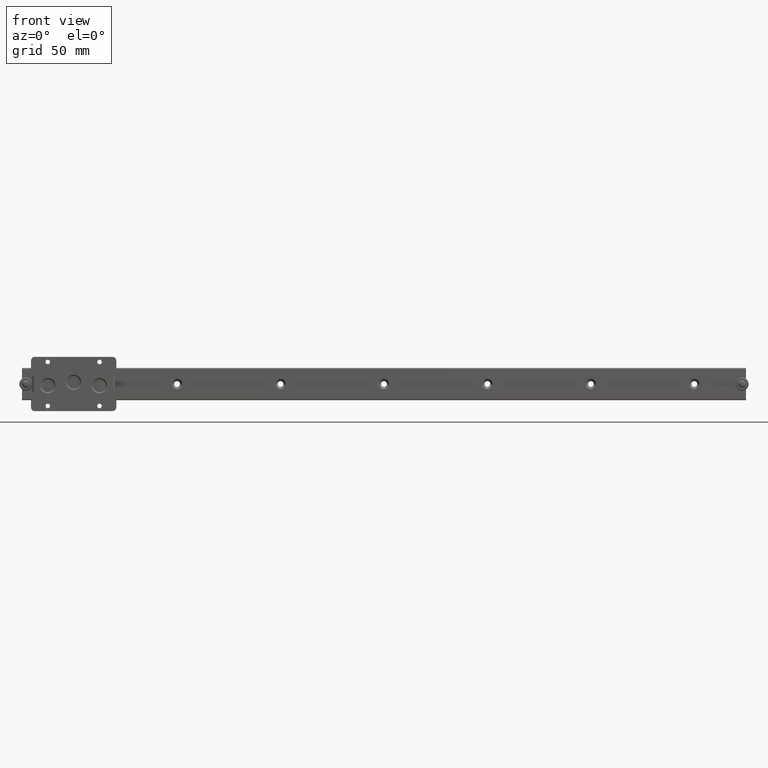
[diagram: clean part render]
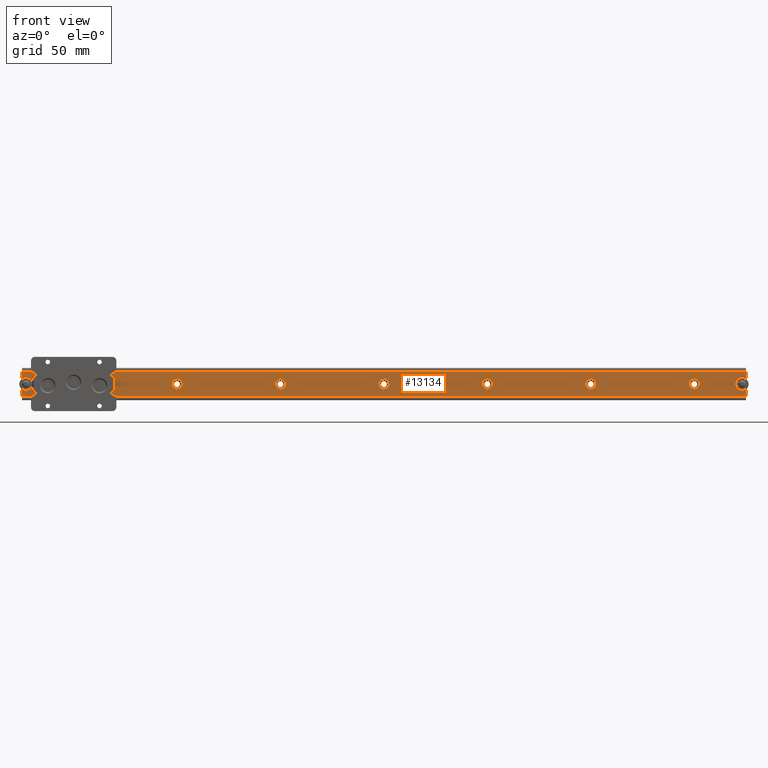
[diagram: same view with one face highlighted and labeled with its STEP entity id]
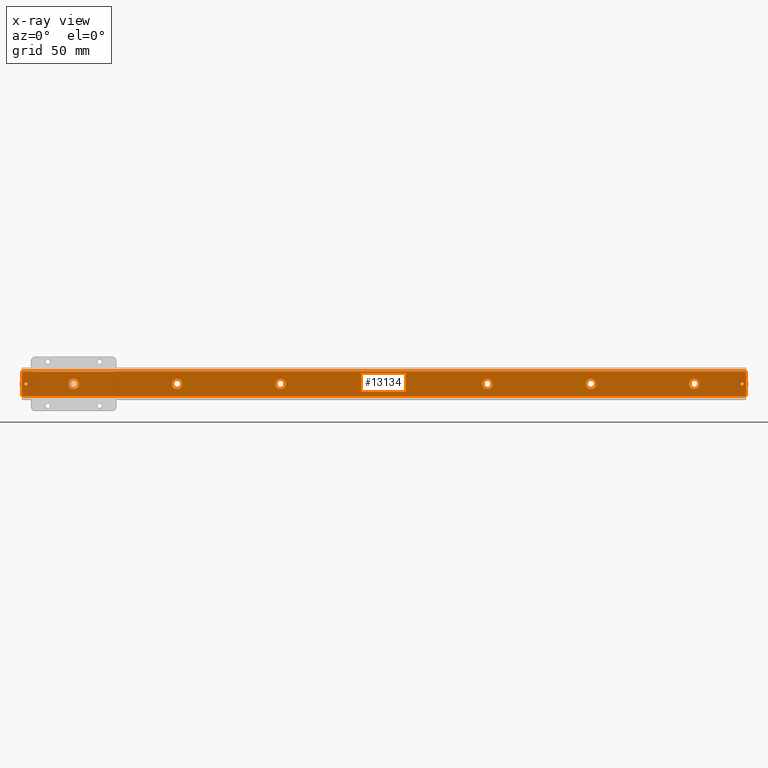
[diagram: x-ray of the same camera — body ghosted, the highlighted face saturated]
A machine part, front view. The second image highlights one B-rep face of the part: STEP entity #13134.
The next image is the same camera in x-ray: the body ghosted, the highlighted face saturated — about 0% of this face is hidden behind the body in this view.
In plain terms, the highlighted face is a freeform B-spline surface patch.
Its self-contained STEP definition (entity closure, byte-faithful):
#10102=CARTESIAN_POINT('',(523.992539195827020,-1.900000004012928,-0.244194188891373));
#10103=VERTEX_POINT('',#10102);
#10109=CARTESIAN_POINT('',(520.0,-1.899999999999950,4.0));
#10110=VERTEX_POINT('',#10109);
#10111=CARTESIAN_POINT('',(523.992539195827020,-1.900000004012928,-0.244194188891373));
#10112=CARTESIAN_POINT('',(524.000000003947890,-1.900000003955260,-0.122211068732068));
#10113=CARTESIAN_POINT('',(524.000000003886730,-1.900000003893956,-2.377184E-010));
#10114=CARTESIAN_POINT('',(524.000000001884020,-1.900000001887467,3.999999999884772));
#10115=CARTESIAN_POINT('',(520.0,-1.899999999999950,4.0));
#10123=(BOUNDED_CURVE()B_SPLINE_CURVE(2,(#10111,#10112,#10113,#10114,#10115),.UNSPECIFIED.,.F.,.U.)B_SPLINE_CURVE_WITH_KNOTS((3,2,3),(0.239332960923540,0.250000000000000,0.500000000000000),.UNSPECIFIED.)CURVE()GEOMETRIC_REPRESENTATION_ITEM()RATIONAL_B_SPLINE_CURVE((0.976072038847558,0.987502786358746,1.0,0.707106781186548,1.0))REPRESENTATION_ITEM(''));
#10124=EDGE_CURVE('',#10103,#10110,#10123,.T.);
#10126=CARTESIAN_POINT('',(516.007460804172980,-1.900000004012928,0.244194188891373));
#10127=VERTEX_POINT('',#10126);
#10128=CARTESIAN_POINT('',(520.0,-1.899999999999950,4.0));
#10129=CARTESIAN_POINT('',(516.237175759179990,-1.900000002006439,4.000000000122491));
#10130=CARTESIAN_POINT('',(516.007460804172980,-1.900000004012928,0.244194188891373));
#10138=(BOUNDED_CURVE()B_SPLINE_CURVE(2,(#10128,#10129,#10130),.UNSPECIFIED.,.F.,.U.)B_SPLINE_CURVE_WITH_KNOTS((3,3),(0.500000000000000,0.739332960923540),.UNSPECIFIED.)CURVE()GEOMETRIC_REPRESENTATION_ITEM()RATIONAL_B_SPLINE_CURVE((1.0,0.719603994827801,0.976072038847558))REPRESENTATION_ITEM(''));
#10139=EDGE_CURVE('',#10110,#10127,#10138,.T.);
#10171=CARTESIAN_POINT('',(520.0,-1.899999999999950,-4.0));
#10172=VERTEX_POINT('',#10171);
#10173=CARTESIAN_POINT('',(516.007460804172980,-1.900000004012928,0.244194188891373));
#10174=CARTESIAN_POINT('',(515.999999996052220,-1.900000003955260,0.122211068732068));
#10175=CARTESIAN_POINT('',(515.999999996113390,-1.900000003893956,2.377190E-010));
#10176=CARTESIAN_POINT('',(515.999999998116100,-1.900000001887467,-3.999999999884772));
#10177=CARTESIAN_POINT('',(520.0,-1.899999999999950,-4.0));
#10185=(BOUNDED_CURVE()B_SPLINE_CURVE(2,(#10173,#10174,#10175,#10176,#10177),.UNSPECIFIED.,.F.,.U.)B_SPLINE_CURVE_WITH_KNOTS((3,2,3),(0.739332960923540,0.750000000000000,1.0),.UNSPECIFIED.)CURVE()GEOMETRIC_REPRESENTATION_ITEM()RATIONAL_B_SPLINE_CURVE((0.976072038847558,0.987502786358746,1.0,0.707106781186548,1.0))REPRESENTATION_ITEM(''));
#10186=EDGE_CURVE('',#10127,#10172,#10185,.T.);
#10188=CARTESIAN_POINT('',(520.0,-1.899999999999950,-4.0));
#10189=CARTESIAN_POINT('',(523.762824240820010,-1.900000002006439,-4.000000000122495));
#10190=CARTESIAN_POINT('',(523.992539195827020,-1.900000004012928,-0.244194188891373));
#10198=(BOUNDED_CURVE()B_SPLINE_CURVE(2,(#10188,#10189,#10190),.UNSPECIFIED.,.F.,.U.)B_SPLINE_CURVE_WITH_KNOTS((3,3),(0.0,0.239332960923540),.UNSPECIFIED.)CURVE()GEOMETRIC_REPRESENTATION_ITEM()RATIONAL_B_SPLINE_CURVE((1.0,0.719603994827801,0.976072038847559))REPRESENTATION_ITEM(''));
#10199=EDGE_CURVE('',#10172,#10103,#10198,.T.);
#10406=CARTESIAN_POINT('',(443.992539195827080,-1.900000004012930,-0.244194188891373));
#10407=VERTEX_POINT('',#10406);
#10413=CARTESIAN_POINT('',(440.0,-1.899999999999950,4.0));
#10414=VERTEX_POINT('',#10413);
#10415=CARTESIAN_POINT('',(443.992539195827130,-1.900000004012930,-0.244194188891373));
#10416=CARTESIAN_POINT('',(444.000000003948000,-1.900000003955261,-0.122211068732073));
#10417=CARTESIAN_POINT('',(444.000000003886900,-1.900000003893958,-2.377291E-010));
#10418=CARTESIAN_POINT('',(444.000000001884020,-1.900000001887468,3.999999999884766));
#10419=CARTESIAN_POINT('',(440.0,-1.899999999999950,4.0));
#10427=(BOUNDED_CURVE()B_SPLINE_CURVE(2,(#10415,#10416,#10417,#10418,#10419),.UNSPECIFIED.,.F.,.U.)B_SPLINE_CURVE_WITH_KNOTS((3,2,3),(0.239332960923540,0.250000000000000,0.500000000000000),.UNSPECIFIED.)CURVE()GEOMETRIC_REPRESENTATION_ITEM()RATIONAL_B_SPLINE_CURVE((0.976072038847559,0.987502786358747,1.0,0.707106781186548,1.0))REPRESENTATION_ITEM(''));
#10428=EDGE_CURVE('',#10407,#10414,#10427,.T.);
#10430=CARTESIAN_POINT('',(436.007460804172920,-1.900000004012914,0.244194188891370));
#10431=VERTEX_POINT('',#10430);
#10432=CARTESIAN_POINT('',(440.0,-1.899999999999950,4.0));
#10433=CARTESIAN_POINT('',(436.237175759179930,-1.900000002006433,4.000000000122497));
#10434=CARTESIAN_POINT('',(436.007460804172920,-1.900000004012914,0.244194188891370));
#10442=(BOUNDED_CURVE()B_SPLINE_CURVE(2,(#10432,#10433,#10434),.UNSPECIFIED.,.F.,.U.)B_SPLINE_CURVE_WITH_KNOTS((3,3),(0.500000000000000,0.739332960923540),.UNSPECIFIED.)CURVE()GEOMETRIC_REPRESENTATION_ITEM()RATIONAL_B_SPLINE_CURVE((1.0,0.719603994827800,0.976072038847559))REPRESENTATION_ITEM(''));
#10443=EDGE_CURVE('',#10414,#10431,#10442,.T.);
#10475=CARTESIAN_POINT('',(440.0,-1.899999999999950,-4.0));
#10476=VERTEX_POINT('',#10475);
#10477=CARTESIAN_POINT('',(436.007460804172920,-1.900000004012914,0.244194188891370));
#10478=CARTESIAN_POINT('',(435.999999996052110,-1.900000003955245,0.122211068732071));
#10479=CARTESIAN_POINT('',(435.999999996113270,-1.900000003893942,2.377281E-010));
#10480=CARTESIAN_POINT('',(435.999999998116040,-1.900000001887460,-3.999999999884768));
#10481=CARTESIAN_POINT('',(440.0,-1.899999999999950,-4.0));
#10489=(BOUNDED_CURVE()B_SPLINE_CURVE(2,(#10477,#10478,#10479,#10480,#10481),.UNSPECIFIED.,.F.,.U.)B_SPLINE_CURVE_WITH_KNOTS((3,2,3),(0.739332960923540,0.750000000000000,1.0),.UNSPECIFIED.)CURVE()GEOMETRIC_REPRESENTATION_ITEM()RATIONAL_B_SPLINE_CURVE((0.976072038847559,0.987502786358747,1.0,0.707106781186548,1.0))REPRESENTATION_ITEM(''));
#10490=EDGE_CURVE('',#10431,#10476,#10489,.T.);
#10492=CARTESIAN_POINT('',(440.0,-1.899999999999950,-4.0));
#10493=CARTESIAN_POINT('',(443.762824240820070,-1.900000002006441,-4.000000000122496));
#10494=CARTESIAN_POINT('',(443.992539195827130,-1.900000004012930,-0.244194188891373));
#10502=(BOUNDED_CURVE()B_SPLINE_CURVE(2,(#10492,#10493,#10494),.UNSPECIFIED.,.F.,.U.)B_SPLINE_CURVE_WITH_KNOTS((3,3),(0.0,0.239332960923540),.UNSPECIFIED.)CURVE()GEOMETRIC_REPRESENTATION_ITEM()RATIONAL_B_SPLINE_CURVE((1.0,0.719603994827801,0.976072038847559))REPRESENTATION_ITEM(''));
#10503=EDGE_CURVE('',#10476,#10407,#10502,.T.);
#10710=CARTESIAN_POINT('',(363.992539195827080,-1.900000004012930,-0.244194188891373));
#10711=VERTEX_POINT('',#10710);
#10717=CARTESIAN_POINT('',(360.0,-1.899999999999950,4.0));
#10718=VERTEX_POINT('',#10717);
#10719=CARTESIAN_POINT('',(363.992539195827130,-1.900000004012930,-0.244194188891373));
#10720=CARTESIAN_POINT('',(364.000000003948060,-1.900000003955261,-0.122211068732073));
#10721=CARTESIAN_POINT('',(364.000000003886900,-1.900000003893958,-2.377291E-010));
#10722=CARTESIAN_POINT('',(364.000000001884190,-1.900000001887468,3.999999999884766));
#10723=CARTESIAN_POINT('',(360.0,-1.899999999999950,4.0));
#10731=(BOUNDED_CURVE()B_SPLINE_CURVE(2,(#10719,#10720,#10721,#10722,#10723),.UNSPECIFIED.,.F.,.U.)B_SPLINE_CURVE_WITH_KNOTS((3,2,3),(0.239332960923540,0.250000000000000,0.500000000000000),.UNSPECIFIED.)CURVE()GEOMETRIC_REPRESENTATION_ITEM()RATIONAL_B_SPLINE_CURVE((0.976072038847559,0.987502786358747,1.0,0.707106781186548,1.0))REPRESENTATION_ITEM(''));
#10732=EDGE_CURVE('',#10711,#10718,#10731,.T.);
#10734=CARTESIAN_POINT('',(356.007460804172920,-1.900000004012928,0.244194188891373));
#10735=VERTEX_POINT('',#10734);
#10736=CARTESIAN_POINT('',(360.0,-1.899999999999950,4.0));
#10737=CARTESIAN_POINT('',(356.237175759179820,-1.900000002006439,4.000000000122495));
#10738=CARTESIAN_POINT('',(356.007460804172870,-1.900000004012928,0.244194188891373));
#10746=(BOUNDED_CURVE()B_SPLINE_CURVE(2,(#10736,#10737,#10738),.UNSPECIFIED.,.F.,.U.)B_SPLINE_CURVE_WITH_KNOTS((3,3),(0.500000000000000,0.739332960923540),.UNSPECIFIED.)CURVE()GEOMETRIC_REPRESENTATION_ITEM()RATIONAL_B_SPLINE_CURVE((1.0,0.719603994827801,0.976072038847559))REPRESENTATION_ITEM(''));
#10747=EDGE_CURVE('',#10718,#10735,#10746,.T.);
#10779=CARTESIAN_POINT('',(360.0,-1.899999999999950,-4.0));
#10780=VERTEX_POINT('',#10779);
#10781=CARTESIAN_POINT('',(356.007460804172870,-1.900000004012928,0.244194188891373));
#10782=CARTESIAN_POINT('',(355.999999996052110,-1.900000003955259,0.122211068732072));
#10783=CARTESIAN_POINT('',(355.999999996113220,-1.900000003893955,2.377264E-010));
#10784=CARTESIAN_POINT('',(355.999999998115920,-1.900000001887467,-3.999999999884768));
#10785=CARTESIAN_POINT('',(360.0,-1.899999999999950,-4.0));
#10793=(BOUNDED_CURVE()B_SPLINE_CURVE(2,(#10781,#10782,#10783,#10784,#10785),.UNSPECIFIED.,.F.,.U.)B_SPLINE_CURVE_WITH_KNOTS((3,2,3),(0.739332960923540,0.750000000000000,1.0),.UNSPECIFIED.)CURVE()GEOMETRIC_REPRESENTATION_ITEM()RATIONAL_B_SPLINE_CURVE((0.976072038847559,0.987502786358747,1.0,0.707106781186548,1.0))REPRESENTATION_ITEM(''));
#10794=EDGE_CURVE('',#10735,#10780,#10793,.T.);
#10796=CARTESIAN_POINT('',(360.0,-1.899999999999950,-4.0));
#10797=CARTESIAN_POINT('',(363.762824240820070,-1.900000002006440,-4.000000000122495));
#10798=CARTESIAN_POINT('',(363.992539195827020,-1.900000004012930,-0.244194188891373));
#10806=(BOUNDED_CURVE()B_SPLINE_CURVE(2,(#10796,#10797,#10798),.UNSPECIFIED.,.F.,.U.)B_SPLINE_CURVE_WITH_KNOTS((3,3),(0.0,0.239332960923540),.UNSPECIFIED.)CURVE()GEOMETRIC_REPRESENTATION_ITEM()RATIONAL_B_SPLINE_CURVE((1.0,0.719603994827801,0.976072038847559))REPRESENTATION_ITEM(''));
#10807=EDGE_CURVE('',#10780,#10711,#10806,.T.);
#11014=CARTESIAN_POINT('',(283.992539195827080,-1.900000004012947,-0.244194188891377));
#11015=VERTEX_POINT('',#11014);
#11021=CARTESIAN_POINT('',(280.0,-1.899999999999950,4.0));
#11022=VERTEX_POINT('',#11021);
#11023=CARTESIAN_POINT('',(283.992539195827130,-1.900000004012947,-0.244194188891376));
#11024=CARTESIAN_POINT('',(284.000000003947950,-1.900000003955278,-0.122211068732071));
#11025=CARTESIAN_POINT('',(284.000000003886780,-1.900000003893974,-2.377221E-010));
#11026=CARTESIAN_POINT('',(284.000000001884130,-1.900000001887475,3.999999999884771));
#11027=CARTESIAN_POINT('',(280.0,-1.899999999999950,4.0));
#11035=(BOUNDED_CURVE()B_SPLINE_CURVE(2,(#11023,#11024,#11025,#11026,#11027),.UNSPECIFIED.,.F.,.U.)B_SPLINE_CURVE_WITH_KNOTS((3,2,3),(0.239332960923540,0.250000000000000,0.500000000000000),.UNSPECIFIED.)CURVE()GEOMETRIC_REPRESENTATION_ITEM()RATIONAL_B_SPLINE_CURVE((0.976072038847558,0.987502786358746,1.0,0.707106781186548,1.0))REPRESENTATION_ITEM(''));
#11036=EDGE_CURVE('',#11015,#11022,#11035,.T.);
#11038=CARTESIAN_POINT('',(276.007460804172980,-1.900000004012926,0.244194188891372));
#11039=VERTEX_POINT('',#11038);
#11040=CARTESIAN_POINT('',(280.0,-1.899999999999950,4.0));
#11041=CARTESIAN_POINT('',(276.237175759180050,-1.900000002006439,4.000000000122493));
#11042=CARTESIAN_POINT('',(276.007460804173040,-1.900000004012926,0.244194188891372));
#11050=(BOUNDED_CURVE()B_SPLINE_CURVE(2,(#11040,#11041,#11042),.UNSPECIFIED.,.F.,.U.)B_SPLINE_CURVE_WITH_KNOTS((3,3),(0.500000000000000,0.739332960923540),.UNSPECIFIED.)CURVE()GEOMETRIC_REPRESENTATION_ITEM()RATIONAL_B_SPLINE_CURVE((1.0,0.719603994827801,0.976072038847558))REPRESENTATION_ITEM(''));
#11051=EDGE_CURVE('',#11022,#11039,#11050,.T.);
#11083=CARTESIAN_POINT('',(280.0,-1.899999999999950,-4.0));
#11084=VERTEX_POINT('',#11083);
#11085=CARTESIAN_POINT('',(276.007460804173040,-1.900000004012926,0.244194188891372));
#11086=CARTESIAN_POINT('',(275.999999996052170,-1.900000003955257,0.122211068732069));
#11087=CARTESIAN_POINT('',(275.999999996113270,-1.900000003893953,2.377227E-010));
#11088=CARTESIAN_POINT('',(275.999999998116100,-1.900000001887465,-3.999999999884771));
#11089=CARTESIAN_POINT('',(280.0,-1.899999999999950,-4.0));
#11097=(BOUNDED_CURVE()B_SPLINE_CURVE(2,(#11085,#11086,#11087,#11088,#11089),.UNSPECIFIED.,.F.,.U.)B_SPLINE_CURVE_WITH_KNOTS((3,2,3),(0.739332960923540,0.750000000000000,1.0),.UNSPECIFIED.)CURVE()GEOMETRIC_REPRESENTATION_ITEM()RATIONAL_B_SPLINE_CURVE((0.976072038847558,0.987502786358747,1.0,0.707106781186548,1.0))REPRESENTATION_ITEM(''));
#11098=EDGE_CURVE('',#11039,#11084,#11097,.T.);
#11100=CARTESIAN_POINT('',(280.0,-1.899999999999950,-4.0));
#11101=CARTESIAN_POINT('',(283.762824240820070,-1.900000002006448,-4.000000000122493));
#11102=CARTESIAN_POINT('',(283.992539195827190,-1.900000004012947,-0.244194188891377));
#11110=(BOUNDED_CURVE()B_SPLINE_CURVE(2,(#11100,#11101,#11102),.UNSPECIFIED.,.F.,.U.)B_SPLINE_CURVE_WITH_KNOTS((3,3),(0.0,0.239332960923540),.UNSPECIFIED.)CURVE()GEOMETRIC_REPRESENTATION_ITEM()RATIONAL_B_SPLINE_CURVE((1.0,0.719603994827801,0.976072038847558))REPRESENTATION_ITEM(''));
#11111=EDGE_CURVE('',#11084,#11015,#11110,.T.);
#11169=CARTESIAN_POINT('',(4.146454892718871,-1.900000000000000,-0.090228481981517));
#11170=VERTEX_POINT('',#11169);
#11176=CARTESIAN_POINT('',(3.0,-1.900000000000000,1.150000000000000));
#11177=VERTEX_POINT('',#11176);
#11178=CARTESIAN_POINT('',(4.146454892718871,-1.900000000000000,-0.090228481981517));
#11179=CARTESIAN_POINT('',(4.150000000000000,-1.900000000000000,-0.045183885217053));
#11180=CARTESIAN_POINT('',(4.150000000000000,-1.900000000000000,0.0));
#11181=CARTESIAN_POINT('',(4.150000000000000,-1.900000000000000,1.150000000000000));
#11182=CARTESIAN_POINT('',(3.0,-1.900000000000000,1.150000000000000));
#11190=(BOUNDED_CURVE()B_SPLINE_CURVE(2,(#11178,#11179,#11180,#11181,#11182),.UNSPECIFIED.,.F.,.U.)B_SPLINE_CURVE_WITH_KNOTS((3,2,3),(0.736331222596125,0.750000000000000,1.0),.UNSPECIFIED.)CURVE()GEOMETRIC_REPRESENTATION_ITEM()RATIONAL_B_SPLINE_CURVE((0.969723193315353,0.983986031155737,1.0,0.707106781186547,1.0))REPRESENTATION_ITEM(''));
#11191=EDGE_CURVE('',#11170,#11177,#11190,.T.);
#11193=CARTESIAN_POINT('',(1.853545107281130,-1.900000000000000,0.090228481981517));
#11194=VERTEX_POINT('',#11193);
#11195=CARTESIAN_POINT('',(3.0,-1.900000000000000,1.150000000000000));
#11196=CARTESIAN_POINT('',(1.936951420015464,-1.900000000000000,1.150000000000000));
#11197=CARTESIAN_POINT('',(1.853545107281011,-1.900000000000001,0.090228481981526));
#11205=(BOUNDED_CURVE()B_SPLINE_CURVE(2,(#11195,#11196,#11197),.UNSPECIFIED.,.F.,.U.)B_SPLINE_CURVE_WITH_KNOTS((3,3),(0.0,0.236331222596125),.UNSPECIFIED.)CURVE()GEOMETRIC_REPRESENTATION_ITEM()RATIONAL_B_SPLINE_CURVE((1.0,0.723120750030810,0.969723193315353))REPRESENTATION_ITEM(''));
#11206=EDGE_CURVE('',#11177,#11194,#11205,.T.);
#11252=CARTESIAN_POINT('',(3.0,-1.900000000000000,-1.150000000000000));
#11253=VERTEX_POINT('',#11252);
#11254=CARTESIAN_POINT('',(1.853545107281129,-1.900000000000000,0.090228481981517));
#11255=CARTESIAN_POINT('',(1.850000000000001,-1.900000000000000,0.045183885217053));
#11256=CARTESIAN_POINT('',(1.850000000000000,-1.900000000000000,0.0));
#11257=CARTESIAN_POINT('',(1.850000000000000,-1.900000000000000,-1.150000000000000));
#11258=CARTESIAN_POINT('',(3.0,-1.900000000000000,-1.150000000000000));
#11266=(BOUNDED_CURVE()B_SPLINE_CURVE(2,(#11254,#11255,#11256,#11257,#11258),.UNSPECIFIED.,.F.,.U.)B_SPLINE_CURVE_WITH_KNOTS((3,2,3),(0.236331222596125,0.250000000000000,0.500000000000000),.UNSPECIFIED.)CURVE()GEOMETRIC_REPRESENTATION_ITEM()RATIONAL_B_SPLINE_CURVE((0.969723193315353,0.983986031155737,1.0,0.707106781186547,1.0))REPRESENTATION_ITEM(''));
#11267=EDGE_CURVE('',#11194,#11253,#11266,.T.);
#11269=CARTESIAN_POINT('',(3.0,-1.900000000000000,-1.150000000000000));
#11270=CARTESIAN_POINT('',(4.063048579984535,-1.900000000000000,-1.150000000000000));
#11271=CARTESIAN_POINT('',(4.146454892718990,-1.900000000000000,-0.090228481981527));
#11279=(BOUNDED_CURVE()B_SPLINE_CURVE(2,(#11269,#11270,#11271),.UNSPECIFIED.,.F.,.U.)B_SPLINE_CURVE_WITH_KNOTS((3,3),(0.500000000000000,0.736331222596125),.UNSPECIFIED.)CURVE()GEOMETRIC_REPRESENTATION_ITEM()RATIONAL_B_SPLINE_CURVE((1.0,0.723120750030810,0.969723193315353))REPRESENTATION_ITEM(''));
#11280=EDGE_CURVE('',#11253,#11170,#11279,.T.);
#11351=CARTESIAN_POINT('',(558.146454892718910,-1.900000000000000,-0.090228481981525));
#11352=VERTEX_POINT('',#11351);
#11358=CARTESIAN_POINT('',(557.0,-1.900000000000000,1.150000000000000));
#11359=VERTEX_POINT('',#11358);
#11360=CARTESIAN_POINT('',(558.146454892719020,-1.900000000000000,-0.090228481981534));
#11361=CARTESIAN_POINT('',(558.150000000000090,-1.899999999999999,-0.045183885217057));
#11362=CARTESIAN_POINT('',(558.150000000000090,-1.900000000000000,0.0));
#11363=CARTESIAN_POINT('',(558.149999999999980,-1.900000000000000,1.150000000000000));
#11364=CARTESIAN_POINT('',(557.0,-1.900000000000000,1.150000000000000));
#11372=(BOUNDED_CURVE()B_SPLINE_CURVE(2,(#11360,#11361,#11362,#11363,#11364),.UNSPECIFIED.,.F.,.U.)B_SPLINE_CURVE_WITH_KNOTS((3,2,3),(0.736331222596123,0.750000000000000,1.0),.UNSPECIFIED.)CURVE()GEOMETRIC_REPRESENTATION_ITEM()RATIONAL_B_SPLINE_CURVE((0.969723193315351,0.983986031155736,1.0,0.707106781186547,1.0))REPRESENTATION_ITEM(''));
#11373=EDGE_CURVE('',#11352,#11359,#11372,.T.);
#11375=CARTESIAN_POINT('',(555.853545107281210,-1.900000000000000,0.090228481981516));
#11376=VERTEX_POINT('',#11375);
#11377=CARTESIAN_POINT('',(557.0,-1.900000000000000,1.150000000000000));
#11378=CARTESIAN_POINT('',(555.936951420015590,-1.900000000000001,1.150000000000000));
#11379=CARTESIAN_POINT('',(555.853545107280980,-1.900000000000000,0.090228481981534));
#11387=(BOUNDED_CURVE()B_SPLINE_CURVE(2,(#11377,#11378,#11379),.UNSPECIFIED.,.F.,.U.)B_SPLINE_CURVE_WITH_KNOTS((3,3),(0.0,0.236331222596123),.UNSPECIFIED.)CURVE()GEOMETRIC_REPRESENTATION_ITEM()RATIONAL_B_SPLINE_CURVE((1.0,0.723120750030811,0.969723193315351))REPRESENTATION_ITEM(''));
#11388=EDGE_CURVE('',#11359,#11376,#11387,.T.);
#11434=CARTESIAN_POINT('',(557.0,-1.900000000000000,-1.150000000000000));
#11435=VERTEX_POINT('',#11434);
#11436=CARTESIAN_POINT('',(555.853545107280980,-1.900000000000000,0.090228481981534));
#11437=CARTESIAN_POINT('',(555.850000000000020,-1.899999999999999,0.045183885217057));
#11438=CARTESIAN_POINT('',(555.850000000000020,-1.900000000000000,0.0));
#11439=CARTESIAN_POINT('',(555.850000000000140,-1.900000000000000,-1.150000000000000));
#11440=CARTESIAN_POINT('',(557.0,-1.900000000000000,-1.150000000000000));
#11448=(BOUNDED_CURVE()B_SPLINE_CURVE(2,(#11436,#11437,#11438,#11439,#11440),.UNSPECIFIED.,.F.,.U.)B_SPLINE_CURVE_WITH_KNOTS((3,2,3),(0.236331222596123,0.250000000000000,0.500000000000000),.UNSPECIFIED.)CURVE()GEOMETRIC_REPRESENTATION_ITEM()RATIONAL_B_SPLINE_CURVE((0.969723193315351,0.983986031155736,1.0,0.707106781186547,1.0))REPRESENTATION_ITEM(''));
#11449=EDGE_CURVE('',#11376,#11435,#11448,.T.);
#11451=CARTESIAN_POINT('',(557.0,-1.900000000000000,-1.150000000000000));
#11452=CARTESIAN_POINT('',(558.063048579984750,-1.900000000000001,-1.150000000000000));
#11453=CARTESIAN_POINT('',(558.146454892719020,-1.900000000000000,-0.090228481981534));
#11461=(BOUNDED_CURVE()B_SPLINE_CURVE(2,(#11451,#11452,#11453),.UNSPECIFIED.,.F.,.U.)B_SPLINE_CURVE_WITH_KNOTS((3,3),(0.500000000000000,0.736331222596123),.UNSPECIFIED.)CURVE()GEOMETRIC_REPRESENTATION_ITEM()RATIONAL_B_SPLINE_CURVE((1.0,0.723120750030811,0.969723193315351))REPRESENTATION_ITEM(''));
#11462=EDGE_CURVE('',#11435,#11352,#11461,.T.);
#11682=CARTESIAN_POINT('',(43.992539195827057,-1.900000004012939,-0.244194188891371));
#11683=VERTEX_POINT('',#11682);
#11689=CARTESIAN_POINT('',(40.0,-1.899999999999970,4.0));
#11690=VERTEX_POINT('',#11689);
#11691=CARTESIAN_POINT('',(43.992539195827078,-1.900000004012939,-0.244194188891371));
#11692=CARTESIAN_POINT('',(44.000000003947918,-1.900000003955271,-0.122211068732069));
#11693=CARTESIAN_POINT('',(44.000000003886733,-1.900000003893967,-2.377227E-010));
#11694=CARTESIAN_POINT('',(44.000000001883997,-1.900000001887483,3.999999999884771));
#11695=CARTESIAN_POINT('',(40.0,-1.899999999999970,4.0));
#11703=(BOUNDED_CURVE()B_SPLINE_CURVE(2,(#11691,#11692,#11693,#11694,#11695),.UNSPECIFIED.,.F.,.U.)B_SPLINE_CURVE_WITH_KNOTS((3,2,3),(0.239332960923540,0.250000000000000,0.500000000000000),.UNSPECIFIED.)CURVE()GEOMETRIC_REPRESENTATION_ITEM()RATIONAL_B_SPLINE_CURVE((0.976072038847558,0.987502786358747,1.0,0.707106781186548,1.0))REPRESENTATION_ITEM(''));
#11704=EDGE_CURVE('',#11683,#11690,#11703,.T.);
#11706=CARTESIAN_POINT('',(36.007460804172943,-1.900000004012937,0.244194188891371));
#11707=VERTEX_POINT('',#11706);
#11708=CARTESIAN_POINT('',(40.0,-1.899999999999970,4.0));
#11709=CARTESIAN_POINT('',(36.237175759179920,-1.900000002006454,4.000000000122493));
#11710=CARTESIAN_POINT('',(36.007460804172950,-1.900000004012937,0.244194188891371));
#11718=(BOUNDED_CURVE()B_SPLINE_CURVE(2,(#11708,#11709,#11710),.UNSPECIFIED.,.F.,.U.)B_SPLINE_CURVE_WITH_KNOTS((3,3),(0.500000000000000,0.739332960923540),.UNSPECIFIED.)CURVE()GEOMETRIC_REPRESENTATION_ITEM()RATIONAL_B_SPLINE_CURVE((1.0,0.719603994827801,0.976072038847558))REPRESENTATION_ITEM(''));
#11719=EDGE_CURVE('',#11690,#11707,#11718,.T.);
#11751=CARTESIAN_POINT('',(40.0,-1.899999999999970,-4.0));
#11752=VERTEX_POINT('',#11751);
#11753=CARTESIAN_POINT('',(36.007460804172950,-1.900000004012937,0.244194188891371));
#11754=CARTESIAN_POINT('',(35.999999996052090,-1.900000003955268,0.122211068732069));
#11755=CARTESIAN_POINT('',(35.999999996113281,-1.900000003893964,2.377220E-010));
#11756=CARTESIAN_POINT('',(35.999999998116024,-1.900000001887481,-3.999999999884771));
#11757=CARTESIAN_POINT('',(40.0,-1.899999999999970,-4.0));
#11765=(BOUNDED_CURVE()B_SPLINE_CURVE(2,(#11753,#11754,#11755,#11756,#11757),.UNSPECIFIED.,.F.,.U.)B_SPLINE_CURVE_WITH_KNOTS((3,2,3),(0.739332960923540,0.750000000000000,1.0),.UNSPECIFIED.)CURVE()GEOMETRIC_REPRESENTATION_ITEM()RATIONAL_B_SPLINE_CURVE((0.976072038847558,0.987502786358747,1.0,0.707106781186548,1.0))REPRESENTATION_ITEM(''));
#11766=EDGE_CURVE('',#11707,#11752,#11765,.T.);
#11768=CARTESIAN_POINT('',(40.0,-1.899999999999970,-4.0));
#11769=CARTESIAN_POINT('',(43.762824240820080,-1.900000002006454,-4.000000000122493));
#11770=CARTESIAN_POINT('',(43.992539195827071,-1.900000004012939,-0.244194188891371));
#11778=(BOUNDED_CURVE()B_SPLINE_CURVE(2,(#11768,#11769,#11770),.UNSPECIFIED.,.F.,.U.)B_SPLINE_CURVE_WITH_KNOTS((3,3),(0.0,0.239332960923540),.UNSPECIFIED.)CURVE()GEOMETRIC_REPRESENTATION_ITEM()RATIONAL_B_SPLINE_CURVE((1.0,0.719603994827801,0.976072038847559))REPRESENTATION_ITEM(''));
#11779=EDGE_CURVE('',#11752,#11683,#11778,.T.);
#11986=CARTESIAN_POINT('',(123.992539195827110,-1.900000004012935,-0.244194188891372));
#11987=VERTEX_POINT('',#11986);
#11993=CARTESIAN_POINT('',(120.0,-1.899999999999960,4.0));
#11994=VERTEX_POINT('',#11993);
#11995=CARTESIAN_POINT('',(123.992539195827050,-1.900000004012934,-0.244194188891372));
#11996=CARTESIAN_POINT('',(124.000000003947930,-1.900000003955266,-0.122211068732069));
#11997=CARTESIAN_POINT('',(124.000000003886700,-1.900000003893962,-2.377231E-010));
#11998=CARTESIAN_POINT('',(124.000000001884000,-1.900000001887475,3.999999999884771));
#11999=CARTESIAN_POINT('',(120.0,-1.899999999999960,4.0));
#12007=(BOUNDED_CURVE()B_SPLINE_CURVE(2,(#11995,#11996,#11997,#11998,#11999),.UNSPECIFIED.,.F.,.U.)B_SPLINE_CURVE_WITH_KNOTS((3,2,3),(0.239332960923540,0.250000000000000,0.500000000000000),.UNSPECIFIED.)CURVE()GEOMETRIC_REPRESENTATION_ITEM()RATIONAL_B_SPLINE_CURVE((0.976072038847558,0.987502786358747,1.0,0.707106781186548,1.0))REPRESENTATION_ITEM(''));
#12008=EDGE_CURVE('',#11987,#11994,#12007,.T.);
#12010=CARTESIAN_POINT('',(116.007460804172890,-1.900000004012937,0.244194188891372));
#12011=VERTEX_POINT('',#12010);
#12012=CARTESIAN_POINT('',(120.0,-1.899999999999960,4.0));
#12013=CARTESIAN_POINT('',(116.237175759179860,-1.900000002006448,4.000000000122493));
#12014=CARTESIAN_POINT('',(116.007460804172950,-1.900000004012937,0.244194188891372));
#12022=(BOUNDED_CURVE()B_SPLINE_CURVE(2,(#12012,#12013,#12014),.UNSPECIFIED.,.F.,.U.)B_SPLINE_CURVE_WITH_KNOTS((3,3),(0.500000000000000,0.739332960923540),.UNSPECIFIED.)CURVE()GEOMETRIC_REPRESENTATION_ITEM()RATIONAL_B_SPLINE_CURVE((1.0,0.719603994827801,0.976072038847558))REPRESENTATION_ITEM(''));
#12023=EDGE_CURVE('',#11994,#12011,#12022,.T.);
#12055=CARTESIAN_POINT('',(120.0,-1.899999999999960,-4.0));
#12056=VERTEX_POINT('',#12055);
#12057=CARTESIAN_POINT('',(116.007460804172950,-1.900000004012937,0.244194188891372));
#12058=CARTESIAN_POINT('',(115.999999996052040,-1.900000003955268,0.122211068732069));
#12059=CARTESIAN_POINT('',(115.999999996113200,-1.900000003893964,2.377226E-010));
#12060=CARTESIAN_POINT('',(115.999999998116000,-1.900000001887475,-3.999999999884771));
#12061=CARTESIAN_POINT('',(120.0,-1.899999999999960,-4.0));
#12069=(BOUNDED_CURVE()B_SPLINE_CURVE(2,(#12057,#12058,#12059,#12060,#12061),.UNSPECIFIED.,.F.,.U.)B_SPLINE_CURVE_WITH_KNOTS((3,2,3),(0.739332960923540,0.750000000000000,1.0),.UNSPECIFIED.)CURVE()GEOMETRIC_REPRESENTATION_ITEM()RATIONAL_B_SPLINE_CURVE((0.976072038847558,0.987502786358747,1.0,0.707106781186548,1.0))REPRESENTATION_ITEM(''));
#12070=EDGE_CURVE('',#12011,#12056,#12069,.T.);
#12072=CARTESIAN_POINT('',(120.0,-1.899999999999960,-4.0));
#12073=CARTESIAN_POINT('',(123.762824240820110,-1.900000002006447,-4.000000000122493));
#12074=CARTESIAN_POINT('',(123.992539195827050,-1.900000004012934,-0.244194188891372));
#12082=(BOUNDED_CURVE()B_SPLINE_CURVE(2,(#12072,#12073,#12074),.UNSPECIFIED.,.F.,.U.)B_SPLINE_CURVE_WITH_KNOTS((3,3),(0.0,0.239332960923540),.UNSPECIFIED.)CURVE()GEOMETRIC_REPRESENTATION_ITEM()RATIONAL_B_SPLINE_CURVE((1.0,0.719603994827801,0.976072038847558))REPRESENTATION_ITEM(''));
#12083=EDGE_CURVE('',#12056,#11987,#12082,.T.);
#12290=CARTESIAN_POINT('',(203.992539195827110,-1.900000004012930,-0.244194188891374));
#12291=VERTEX_POINT('',#12290);
#12297=CARTESIAN_POINT('',(200.0,-1.899999999999950,4.0));
#12298=VERTEX_POINT('',#12297);
#12299=CARTESIAN_POINT('',(203.992539195827110,-1.900000004012931,-0.244194188891373));
#12300=CARTESIAN_POINT('',(204.000000003947950,-1.900000003955261,-0.122211068732070));
#12301=CARTESIAN_POINT('',(204.000000003886700,-1.900000003893958,-2.377223E-010));
#12302=CARTESIAN_POINT('',(204.000000001884020,-1.900000001887468,3.999999999884771));
#12303=CARTESIAN_POINT('',(200.0,-1.899999999999950,4.0));
#12311=(BOUNDED_CURVE()B_SPLINE_CURVE(2,(#12299,#12300,#12301,#12302,#12303),.UNSPECIFIED.,.F.,.U.)B_SPLINE_CURVE_WITH_KNOTS((3,2,3),(0.239332960923540,0.250000000000000,0.500000000000000),.UNSPECIFIED.)CURVE()GEOMETRIC_REPRESENTATION_ITEM()RATIONAL_B_SPLINE_CURVE((0.976072038847558,0.987502786358747,1.0,0.707106781186548,1.0))REPRESENTATION_ITEM(''));
#12312=EDGE_CURVE('',#12291,#12298,#12311,.T.);
#12314=CARTESIAN_POINT('',(196.007460804172890,-1.900000004012921,0.244194188891372));
#12315=VERTEX_POINT('',#12314);
#12316=CARTESIAN_POINT('',(200.0,-1.899999999999950,4.0));
#12317=CARTESIAN_POINT('',(196.237175759179850,-1.900000002006436,4.000000000122495));
#12318=CARTESIAN_POINT('',(196.007460804172950,-1.900000004012921,0.244194188891371));
#12326=(BOUNDED_CURVE()B_SPLINE_CURVE(2,(#12316,#12317,#12318),.UNSPECIFIED.,.F.,.U.)B_SPLINE_CURVE_WITH_KNOTS((3,3),(0.500000000000000,0.739332960923540),.UNSPECIFIED.)CURVE()GEOMETRIC_REPRESENTATION_ITEM()RATIONAL_B_SPLINE_CURVE((1.0,0.719603994827801,0.976072038847559))REPRESENTATION_ITEM(''));
#12327=EDGE_CURVE('',#12298,#12315,#12326,.T.);
#12359=CARTESIAN_POINT('',(200.0,-1.899999999999950,-4.0));
#12360=VERTEX_POINT('',#12359);
#12361=CARTESIAN_POINT('',(196.007460804172950,-1.900000004012921,0.244194188891371));
#12362=CARTESIAN_POINT('',(195.999999996052080,-1.900000003955252,0.122211068732070));
#12363=CARTESIAN_POINT('',(195.999999996113300,-1.900000003893948,2.377247E-010));
#12364=CARTESIAN_POINT('',(195.999999998115920,-1.900000001887464,-3.999999999884770));
#12365=CARTESIAN_POINT('',(200.0,-1.899999999999950,-4.0));
#12373=(BOUNDED_CURVE()B_SPLINE_CURVE(2,(#12361,#12362,#12363,#12364,#12365),.UNSPECIFIED.,.F.,.U.)B_SPLINE_CURVE_WITH_KNOTS((3,2,3),(0.739332960923540,0.750000000000000,1.0),.UNSPECIFIED.)CURVE()GEOMETRIC_REPRESENTATION_ITEM()RATIONAL_B_SPLINE_CURVE((0.976072038847559,0.987502786358747,1.0,0.707106781186548,1.0))REPRESENTATION_ITEM(''));
#12374=EDGE_CURVE('',#12315,#12360,#12373,.T.);
#12376=CARTESIAN_POINT('',(200.0,-1.899999999999950,-4.0));
#12377=CARTESIAN_POINT('',(203.762824240820070,-1.900000002006440,-4.000000000122493));
#12378=CARTESIAN_POINT('',(203.992539195827110,-1.900000004012931,-0.244194188891373));
#12386=(BOUNDED_CURVE()B_SPLINE_CURVE(2,(#12376,#12377,#12378),.UNSPECIFIED.,.F.,.U.)B_SPLINE_CURVE_WITH_KNOTS((3,3),(0.0,0.239332960923540),.UNSPECIFIED.)CURVE()GEOMETRIC_REPRESENTATION_ITEM()RATIONAL_B_SPLINE_CURVE((1.0,0.719603994827801,0.976072038847558))REPRESENTATION_ITEM(''));
#12387=EDGE_CURVE('',#12360,#12291,#12386,.T.);
#12731=CARTESIAN_POINT('',(0.0,-1.899999999999965,-9.600000000119080));
#12732=VERTEX_POINT('',#12731);
#12738=CARTESIAN_POINT('',(0.0,-1.900000000000000,9.599999999880820));
#12739=VERTEX_POINT('',#12738);
#12740=CARTESIAN_POINT('',(0.0,-1.899999999999965,-9.600000000119080));
#12741=CARTESIAN_POINT('',(0.0,-1.900000000000000,9.599999999880820));
#12742=QUASI_UNIFORM_CURVE('',1,(#12740,#12741),.UNSPECIFIED.,.F.,.U.);
#12743=EDGE_CURVE('',#12732,#12739,#12742,.T.);
#12887=CARTESIAN_POINT('',(560.0,-1.900000000000000,9.599999999880820));
#12888=VERTEX_POINT('',#12887);
#12894=CARTESIAN_POINT('',(560.0,-1.899999999999965,-9.600000000119080));
#12895=VERTEX_POINT('',#12894);
#12896=CARTESIAN_POINT('',(560.0,-1.899999999999965,-9.600000000119080));
#12897=CARTESIAN_POINT('',(560.0,-1.900000000000000,9.599999999880820));
#12898=QUASI_UNIFORM_CURVE('',1,(#12896,#12897),.UNSPECIFIED.,.F.,.U.);
#12899=EDGE_CURVE('',#12895,#12888,#12898,.T.);
#13043=CARTESIAN_POINT('',(560.0,-1.900000000000000,9.599999999880820));
#13044=CARTESIAN_POINT('',(0.0,-1.900000000000000,9.599999999880820));
#13045=QUASI_UNIFORM_CURVE('',1,(#13043,#13044),.UNSPECIFIED.,.F.,.U.);
#13046=EDGE_CURVE('',#12888,#12739,#13045,.T.);
#13061=CARTESIAN_POINT('',(560.0,-1.899999999999965,-9.600000000119080));
#13062=CARTESIAN_POINT('',(0.0,-1.899999999999965,-9.600000000119080));
#13063=QUASI_UNIFORM_CURVE('',1,(#13061,#13062),.UNSPECIFIED.,.F.,.U.);
#13064=EDGE_CURVE('',#12895,#12732,#13063,.T.);
#13069=CARTESIAN_POINT('',(-27.971998914611351,-1.900000000000000,10.559039962667489));
#13070=CARTESIAN_POINT('',(-27.971998914611351,-1.900000000000000,-10.559040477889880));
#13071=CARTESIAN_POINT('',(587.972013934981760,-1.900000000000000,10.559039962667489));
#13072=CARTESIAN_POINT('',(587.972013934981760,-1.900000000000000,-10.559040477889880));
#13073=B_SPLINE_SURFACE_WITH_KNOTS('',1,1,((#13069,#13071),(#13070,#13072)),.UNSPECIFIED.,.F.,.F.,.U.,(2,2),(2,2),(0.0,21.118080440557371),(0.0,615.944012849593150),.UNSPECIFIED.);
#13074=ORIENTED_EDGE('',*,*,#12743,.F.);
#13075=ORIENTED_EDGE('',*,*,#13064,.F.);
#13076=ORIENTED_EDGE('',*,*,#12899,.T.);
#13077=ORIENTED_EDGE('',*,*,#13046,.T.);
#13078=EDGE_LOOP('',(#13074,#13075,#13076,#13077));
#13079=FACE_OUTER_BOUND('',#13078,.T.);
#13080=ORIENTED_EDGE('',*,*,#12327,.F.);
#13081=ORIENTED_EDGE('',*,*,#12312,.F.);
#13082=ORIENTED_EDGE('',*,*,#12387,.F.);
#13083=ORIENTED_EDGE('',*,*,#12374,.F.);
#13084=EDGE_LOOP('',(#13080,#13081,#13082,#13083));
#13085=FACE_BOUND('',#13084,.T.);
#13086=ORIENTED_EDGE('',*,*,#12023,.F.);
#13087=ORIENTED_EDGE('',*,*,#12008,.F.);
#13088=ORIENTED_EDGE('',*,*,#12083,.F.);
#13089=ORIENTED_EDGE('',*,*,#12070,.F.);
#13090=EDGE_LOOP('',(#13086,#13087,#13088,#13089));
#13091=FACE_BOUND('',#13090,.T.);
#13092=ORIENTED_EDGE('',*,*,#11719,.F.);
#13093=ORIENTED_EDGE('',*,*,#11704,.F.);
#13094=ORIENTED_EDGE('',*,*,#11779,.F.);
#13095=ORIENTED_EDGE('',*,*,#11766,.F.);
#13096=EDGE_LOOP('',(#13092,#13093,#13094,#13095));
#13097=FACE_BOUND('',#13096,.T.);
#13098=ORIENTED_EDGE('',*,*,#11462,.F.);
#13099=ORIENTED_EDGE('',*,*,#11449,.F.);
#13100=ORIENTED_EDGE('',*,*,#11388,.F.);
#13101=ORIENTED_EDGE('',*,*,#11373,.F.);
#13102=EDGE_LOOP('',(#13098,#13099,#13100,#13101));
#13103=FACE_BOUND('',#13102,.T.);
#13104=ORIENTED_EDGE('',*,*,#11280,.F.);
#13105=ORIENTED_EDGE('',*,*,#11267,.F.);
#13106=ORIENTED_EDGE('',*,*,#11206,.F.);
#13107=ORIENTED_EDGE('',*,*,#11191,.F.);
#13108=EDGE_LOOP('',(#13104,#13105,#13106,#13107));
#13109=FACE_BOUND('',#13108,.T.);
#13110=ORIENTED_EDGE('',*,*,#11051,.F.);
#13111=ORIENTED_EDGE('',*,*,#11036,.F.);
#13112=ORIENTED_EDGE('',*,*,#11111,.F.);
#13113=ORIENTED_EDGE('',*,*,#11098,.F.);
#13114=EDGE_LOOP('',(#13110,#13111,#13112,#13113));
#13115=FACE_BOUND('',#13114,.T.);
#13116=ORIENTED_EDGE('',*,*,#10747,.F.);
#13117=ORIENTED_EDGE('',*,*,#10732,.F.);
#13118=ORIENTED_EDGE('',*,*,#10807,.F.);
#13119=ORIENTED_EDGE('',*,*,#10794,.F.);
#13120=EDGE_LOOP('',(#13116,#13117,#13118,#13119));
#13121=FACE_BOUND('',#13120,.T.);
#13122=ORIENTED_EDGE('',*,*,#10443,.F.);
#13123=ORIENTED_EDGE('',*,*,#10428,.F.);
#13124=ORIENTED_EDGE('',*,*,#10503,.F.);
#13125=ORIENTED_EDGE('',*,*,#10490,.F.);
#13126=EDGE_LOOP('',(#13122,#13123,#13124,#13125));
#13127=FACE_BOUND('',#13126,.T.);
#13128=ORIENTED_EDGE('',*,*,#10139,.F.);
#13129=ORIENTED_EDGE('',*,*,#10124,.F.);
#13130=ORIENTED_EDGE('',*,*,#10199,.F.);
#13131=ORIENTED_EDGE('',*,*,#10186,.F.);
#13132=EDGE_LOOP('',(#13128,#13129,#13130,#13131));
#13133=FACE_BOUND('',#13132,.T.);
#13134=ADVANCED_FACE('',(#13079,#13085,#13091,#13097,#13103,#13109,#13115,#13121,#13127,#13133),#13073,.T.);